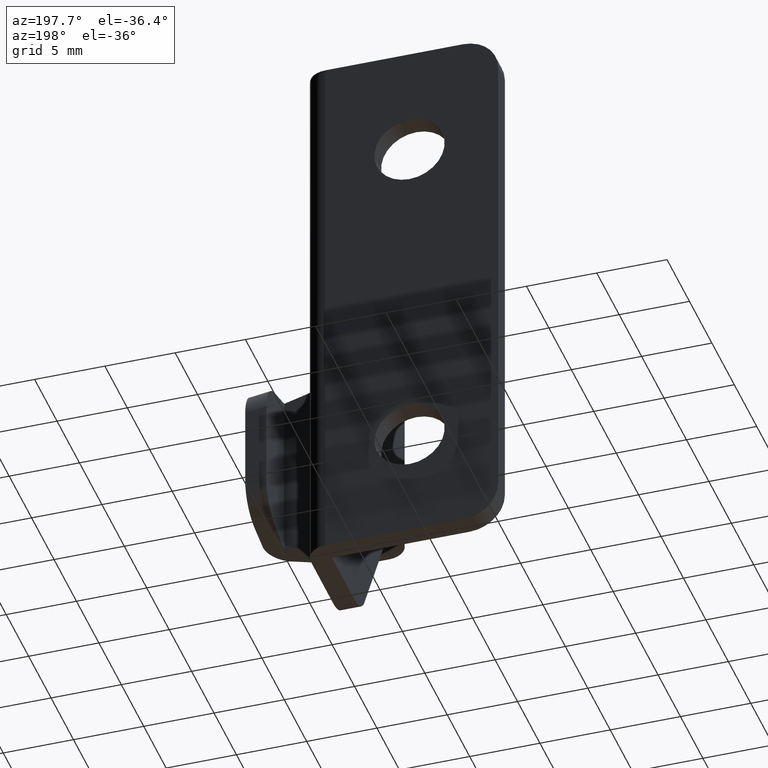
[diagram: clean part render]
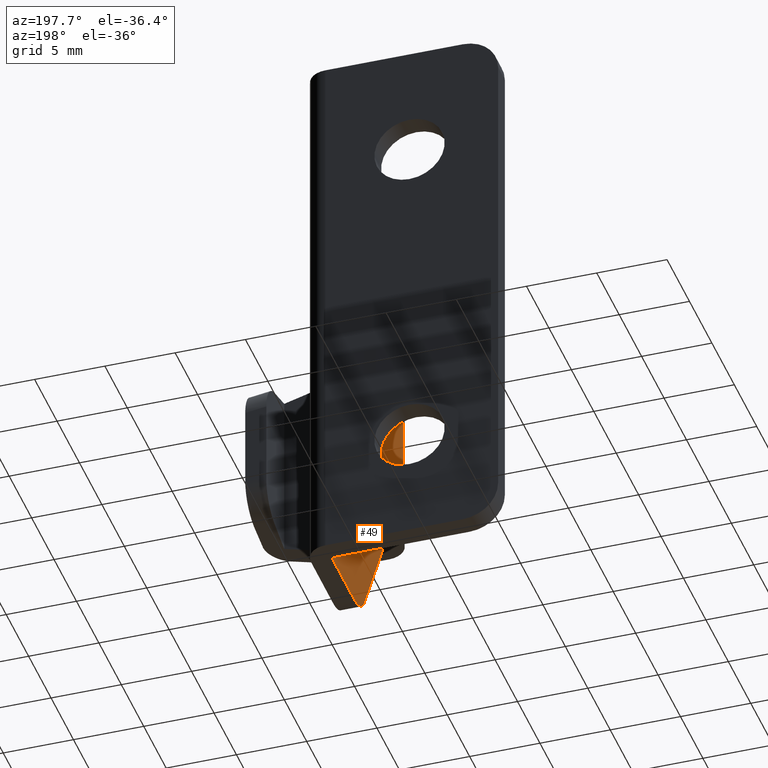
[diagram: same view with one face highlighted and labeled with its STEP entity id]
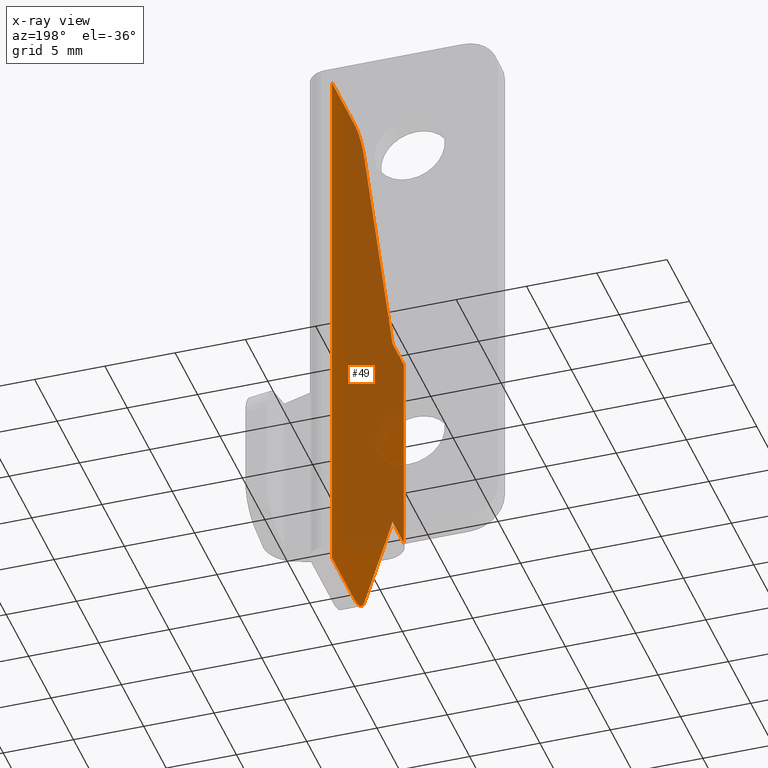
[diagram: x-ray of the same camera — body ghosted, the highlighted face saturated]
A machine part, auxiliary view. The second image highlights one B-rep face of the part: STEP entity #49.
The next image is the same camera in x-ray: the body ghosted, the highlighted face saturated — about 70% of this face is hidden behind the body in this view.
In plain terms, the highlighted planar face has unit normal (1, 0, 0).
Its self-contained STEP definition (entity closure, byte-faithful):
#49=ADVANCED_FACE('',(#166),#165,.F.);
#165=PLANE('',#465);
#166=FACE_OUTER_BOUND('',#466,.T.);
#462=CARTESIAN_POINT('',(1.22999880000E+01,-1.91000000000E+01,2.40000000000E+01));
#463=DIRECTION('',(1.00000000000E+00,0.00000000000E+00,0.00000000000E+00));
#464=DIRECTION('',(0.00000000000E+00,0.00000000000E+00,-1.00000000000E+00));
#465=AXIS2_PLACEMENT_3D('',#462,#463,#464);
#466=EDGE_LOOP('',(#642,#643,#644,#645,#646,#647,#648,#649,#650,#651));
#642=ORIENTED_EDGE('',*,*,#813,.T.);
#643=ORIENTED_EDGE('',*,*,#814,.T.);
#644=ORIENTED_EDGE('',*,*,#815,.F.);
#645=ORIENTED_EDGE('',*,*,#816,.T.);
#646=ORIENTED_EDGE('',*,*,#817,.F.);
#647=ORIENTED_EDGE('',*,*,#818,.T.);
#648=ORIENTED_EDGE('',*,*,#778,.T.);
#649=ORIENTED_EDGE('',*,*,#819,.T.);
#650=ORIENTED_EDGE('',*,*,#820,.F.);
#651=ORIENTED_EDGE('',*,*,#821,.T.);
#778=EDGE_CURVE('',#915,#916,#917,.T.);
#813=EDGE_CURVE('',#1153,#1154,#1155,.T.);
#814=EDGE_CURVE('',#1154,#1161,#1162,.T.);
#815=EDGE_CURVE('',#1168,#1161,#1169,.T.);
#816=EDGE_CURVE('',#1168,#1175,#1176,.T.);
#817=EDGE_CURVE('',#1182,#1175,#1183,.T.);
#818=EDGE_CURVE('',#1182,#915,#1189,.T.);
#819=EDGE_CURVE('',#916,#1195,#1196,.T.);
#820=EDGE_CURVE('',#1202,#1195,#1203,.T.);
#821=EDGE_CURVE('',#1202,#1153,#1209,.T.);
#915=VERTEX_POINT('',#1515);
#916=VERTEX_POINT('',#1516);
#917=LINE('',#1517,#1518);
#1153=VERTEX_POINT('',#1676);
#1154=VERTEX_POINT('',#1677);
#1155=LINE('',#1678,#1679);
#1161=VERTEX_POINT('',#1681);
#1162=LINE('',#1682,#1683);
#1168=VERTEX_POINT('',#1685);
#1169=LINE('',#1686,#1687);
#1175=VERTEX_POINT('',#1689);
#1176=LINE('',#1690,#1691);
#1182=VERTEX_POINT('',#1693);
#1183=CIRCLE('',#1697,2.50000000000E+00);
#1189=LINE('',#1698,#1699);
#1195=VERTEX_POINT('',#1701);
#1196=LINE('',#1702,#1703);
#1202=VERTEX_POINT('',#1705);
#1203=CIRCLE('',#1709,2.50000000000E+00);
#1209=LINE('',#1710,#1711);
#1515=CARTESIAN_POINT('',(1.22999880000E+01,-1.50000000000E+00,2.00000000000E+01));
#1516=CARTESIAN_POINT('',(1.22999880000E+01,-1.50000000000E+00,-2.00000000000E+01));
#1517=CARTESIAN_POINT('',(1.22999880000E+01,-1.50000000000E+00,2.00000000000E+01));
#1518=VECTOR('',#1519,4.00000000000E+01);
#1519=DIRECTION('',(0.00000000000E+00,0.00000000000E+00,-1.00000000000E+00));
#1676=CARTESIAN_POINT('',(1.22999880000E+01,-1.49999826400E+01,-7.50000000000E+00));
#1677=CARTESIAN_POINT('',(1.22999880000E+01,-1.75000000000E+01,-7.50000000000E+00));
#1678=CARTESIAN_POINT('',(1.22999880000E+01,-1.49999826400E+01,-7.50000000000E+00));
#1679=VECTOR('',#1680,2.50001736001E+00);
#1680=DIRECTION('',(0.00000000000E+00,-1.00000000000E+00,0.00000000000E+00));
#1681=CARTESIAN_POINT('',(1.22999880000E+01,-1.75000000000E+01,7.50000000000E+00));
#1682=CARTESIAN_POINT('',(1.22999880000E+01,-1.75000000000E+01,-7.50000000000E+00));
#1683=VECTOR('',#1684,1.50000000000E+01);
#1684=DIRECTION('',(0.00000000000E+00,0.00000000000E+00,1.00000000000E+00));
#1685=CARTESIAN_POINT('',(1.22999880000E+01,-1.50000352400E+01,7.50000000000E+00));
#1686=CARTESIAN_POINT('',(1.22999880000E+01,-1.50000352400E+01,7.50000000000E+00));
#1687=VECTOR('',#1688,2.49996475998E+00);
#1688=DIRECTION('',(0.00000000000E+00,-1.00000000000E+00,0.00000000000E+00));
#1689=CARTESIAN_POINT('',(1.22999880000E+01,-8.71599585956E+00,1.87215076931E+01));
#1690=CARTESIAN_POINT('',(1.22999880000E+01,-1.50000352400E+01,7.50000000000E+00));
#1691=VECTOR('',#1692,1.28612357821E+01);
#1692=DIRECTION('',(0.00000000000E+00,4.88603077257E-01,8.72506179287E-01));
#1693=CARTESIAN_POINT('',(1.22999880000E+01,-6.53473041134E+00,2.00000000000E+01));
#1694=CARTESIAN_POINT('',(1.22999880000E+01,-6.53473041134E+00,1.75000000000E+01));
#1695=DIRECTION('',(1.00000000000E+00,0.00000000000E+00,0.00000000000E+00));
#1696=DIRECTION('',(-0.00000000000E+00,-0.00000000000E+00,1.00000000000E+00));
#1697=AXIS2_PLACEMENT_3D('',#1694,#1695,#1696);
#1698=CARTESIAN_POINT('',(1.22999880000E+01,-6.53473041134E+00,2.00000000000E+01));
#1699=VECTOR('',#1700,5.03473041134E+00);
#1700=DIRECTION('',(0.00000000000E+00,1.00000000000E+00,0.00000000000E+00));
#1701=CARTESIAN_POINT('',(1.22999880000E+01,-6.53466959847E+00,-2.00000000000E+01));
#1702=CARTESIAN_POINT('',(1.22999880000E+01,-1.50000000000E+00,-2.00000000000E+01));
#1703=VECTOR('',#1704,5.03466959847E+00);
#1704=DIRECTION('',(0.00000000000E+00,-1.00000000000E+00,0.00000000000E+00));
#1705=CARTESIAN_POINT('',(1.22999880000E+01,-8.71593436612E+00,-1.87215089085E+01));
#1706=CARTESIAN_POINT('',(1.22999880000E+01,-6.53466959847E+00,-1.75000000000E+01));
#1707=DIRECTION('',(1.00000000000E+00,0.00000000000E+00,0.00000000000E+00));
#1708=DIRECTION('',(-0.00000000000E+00,-0.00000000000E+00,1.00000000000E+00));
#1709=AXIS2_PLACEMENT_3D('',#1706,#1707,#1708);
#1710=CARTESIAN_POINT('',(1.22999880000E+01,-8.71593436612E+00,-1.87215089085E+01));
#1711=VECTOR('',#1712,1.28612411878E+01);
#1712=DIRECTION('',(0.00000000000E+00,-4.88603563382E-01,8.72505907058E-01));